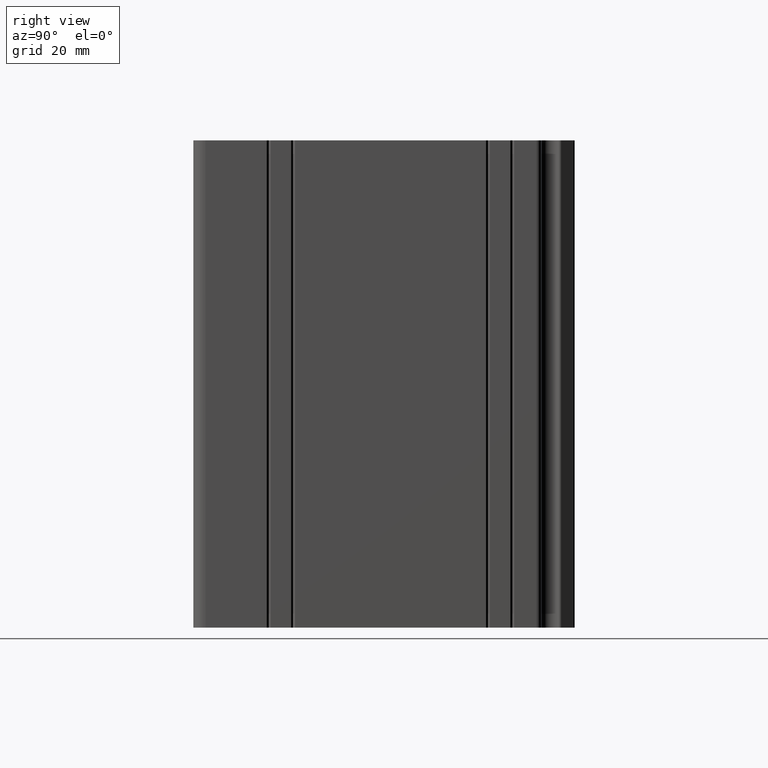
[diagram: clean part render]
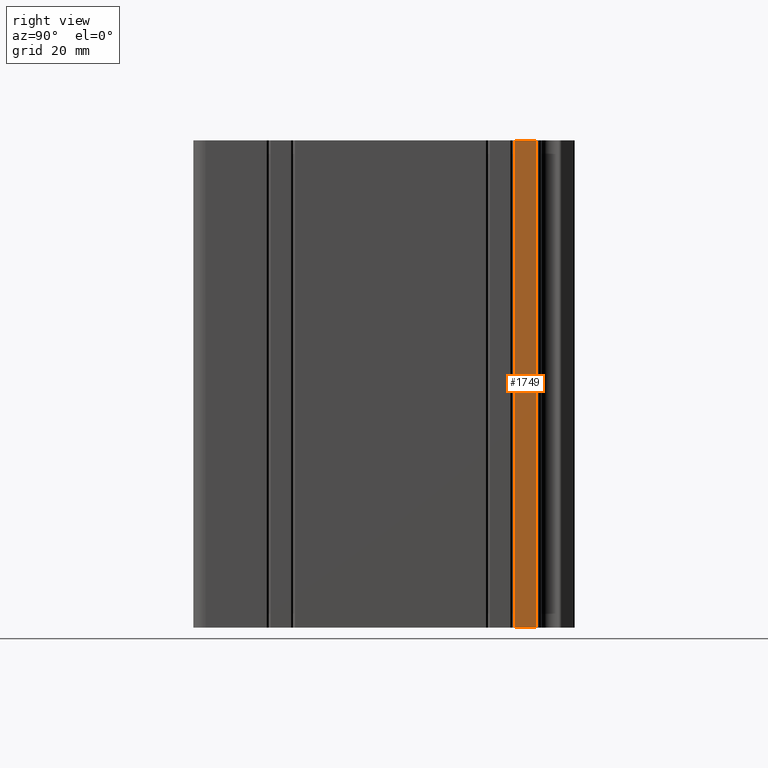
[diagram: same view with one face highlighted and labeled with its STEP entity id]
A machine part, right view. The second image highlights one B-rep face of the part: STEP entity #1749.
In plain terms, the highlighted planar face has unit normal (1, 0, 0).
Its self-contained STEP definition (entity closure, byte-faithful):
#183=FACE_OUTER_BOUND('',#271,.T.);
#271=EDGE_LOOP('',(#1393,#1394,#1395,#1396));
#441=LINE('',#2875,#635);
#442=LINE('',#2878,#636);
#443=LINE('',#2880,#637);
#444=LINE('',#2881,#638);
#635=VECTOR('',#2364,10.);
#636=VECTOR('',#2367,10.);
#637=VECTOR('',#2368,10.);
#638=VECTOR('',#2369,10.);
#819=VERTEX_POINT('',#2871);
#820=VERTEX_POINT('',#2873);
#821=VERTEX_POINT('',#2877);
#822=VERTEX_POINT('',#2879);
#1063=EDGE_CURVE('',#819,#820,#441,.T.);
#1064=EDGE_CURVE('',#821,#819,#442,.T.);
#1065=EDGE_CURVE('',#822,#820,#443,.T.);
#1066=EDGE_CURVE('',#821,#822,#444,.T.);
#1393=ORIENTED_EDGE('',*,*,#1064,.T.);
#1394=ORIENTED_EDGE('',*,*,#1063,.T.);
#1395=ORIENTED_EDGE('',*,*,#1065,.F.);
#1396=ORIENTED_EDGE('',*,*,#1066,.F.);
#1662=PLANE('',#1922);
#1749=ADVANCED_FACE('',(#183),#1662,.T.);
#1922=AXIS2_PLACEMENT_3D('',#2876,#2365,#2366);
#2364=DIRECTION('',(0.,0.,1.));
#2365=DIRECTION('center_axis',(1.,3.14666426783064E-14,0.));
#2366=DIRECTION('ref_axis',(-3.14666426783064E-14,1.,0.));
#2367=DIRECTION('',(-3.14666426783064E-14,1.,0.));
#2368=DIRECTION('',(-3.14666426783064E-14,1.,0.));
#2369=DIRECTION('',(0.,0.,1.));
#2871=CARTESIAN_POINT('',(40.0357959715502,70.3633043838315,0.));
#2873=CARTESIAN_POINT('',(40.0357959715502,70.3633043838315,100.));
#2875=CARTESIAN_POINT('',(40.0357959715502,70.3633043838315,0.));
#2876=CARTESIAN_POINT('Origin',(40.0357959715503,65.8471394848672,0.));
#2877=CARTESIAN_POINT('',(40.0357959715503,65.8471394848672,0.));
#2878=CARTESIAN_POINT('',(40.0357959715503,65.8471394848672,0.));
#2879=CARTESIAN_POINT('',(40.0357959715503,65.8471394848672,100.));
#2880=CARTESIAN_POINT('',(40.0357959715503,65.8471394848672,100.));
#2881=CARTESIAN_POINT('',(40.0357959715503,65.8471394848672,0.));